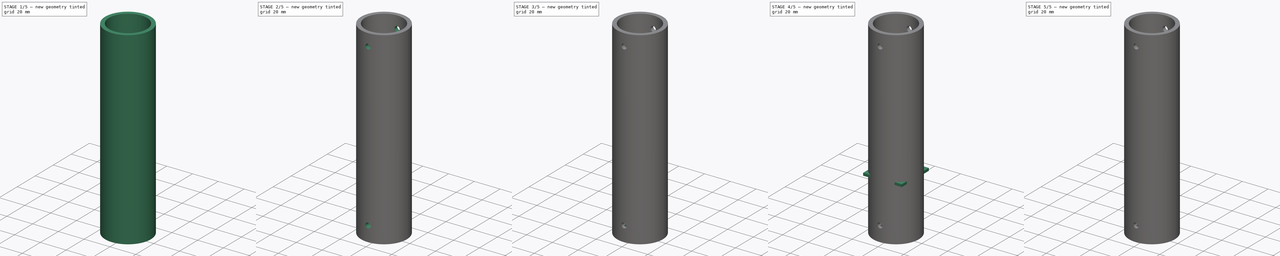
[diagram: build sequence overview — one tinted view per stage of 5, left to right]
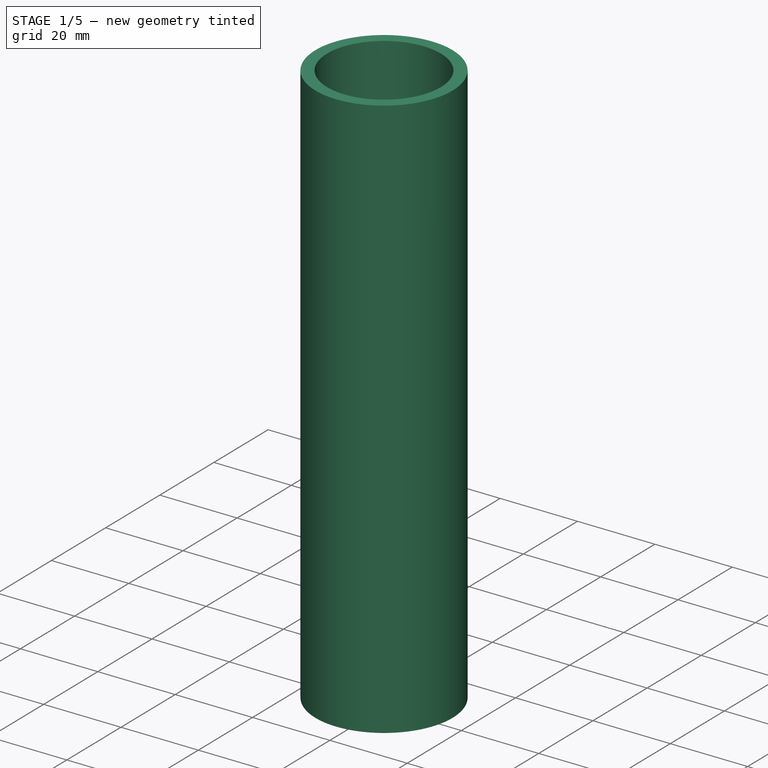
[diagram: stage 1 of 5 — iso view after this stage's code; geometry added in this stage tinted green]
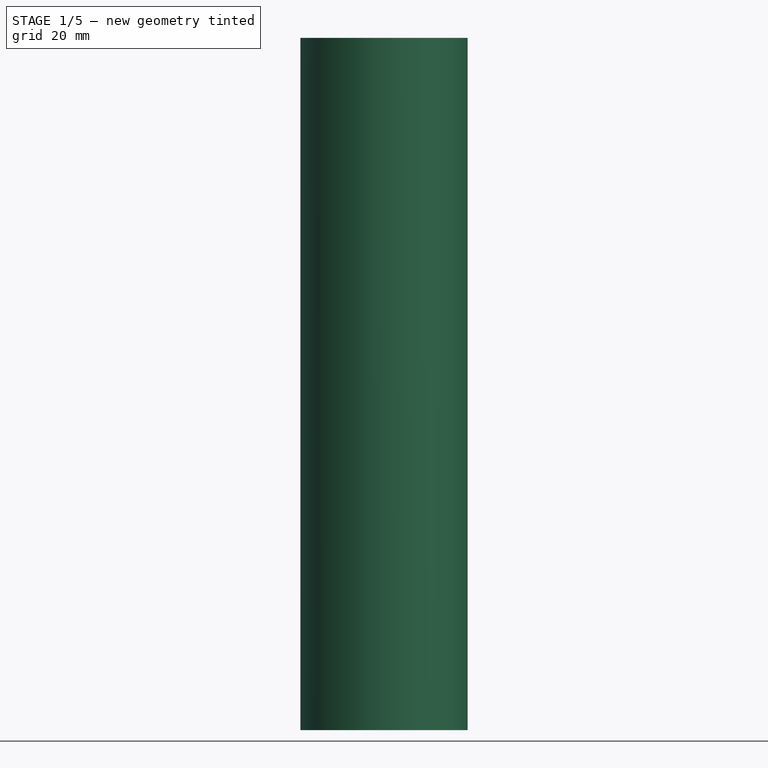
[diagram: stage 1 of 5 — front view after this stage's code; geometry added in this stage tinted green]
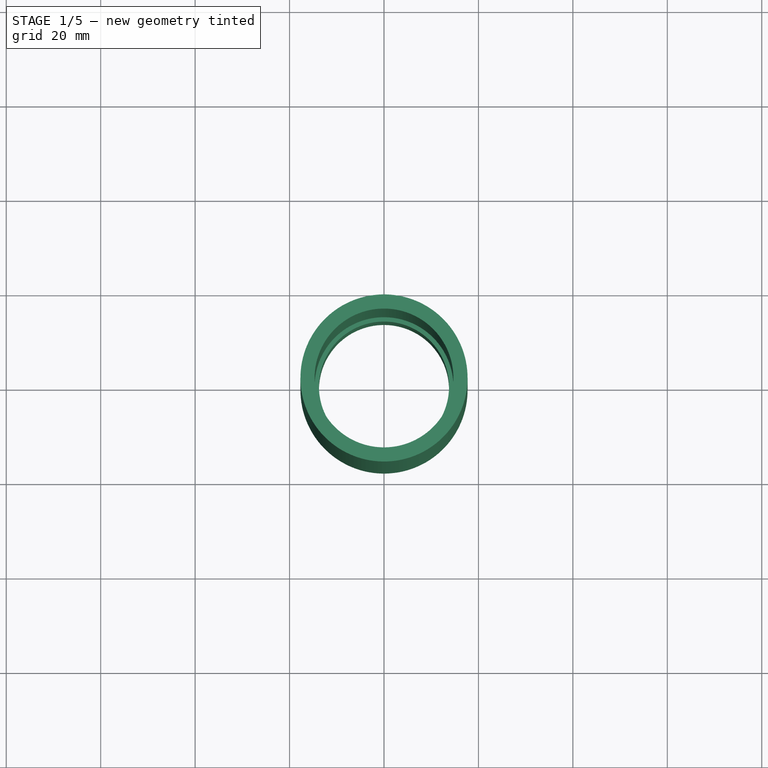
[diagram: stage 1 of 5 — top view after this stage's code; geometry added in this stage tinted green]
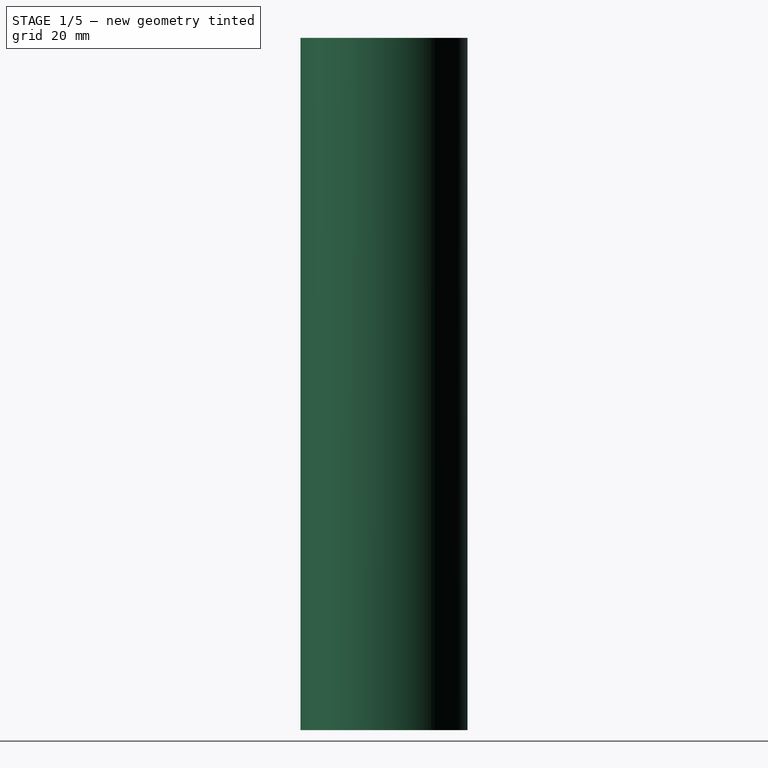
[diagram: stage 1 of 5 — right view after this stage's code; geometry added in this stage tinted green]
FCSTD DOCUMENT  (FreeCAD 0.21R33771 (Git))
Label: RDWhipItGood
License: All rights reserved
LicenseURL: http://en.wikipedia.org/wiki/All_rights_reserved
objects: Sketcher::SketchObject×14, PartDesign::Pocket×10, PartDesign::Pad×4, PartDesign::Body×2, App::Part×2, Spreadsheet::Sheet×1, PartDesign::Fillet×1
note: 46 computed .brp shape members not serialized (recipe doc carries the construction recipe); baked Part::Feature solids carry a one-line shape summary decoded from their .brp

FEATURE [PartDesign::Body] Body  label="RDWhipItGoodWhipBody"
  Group = -> [Sketch,Pad,Sketch001,Pocket,Sketch002,Pocket001,Fillet,Sketch003,Pad001,Sketch004,Pocket002,Sketch006,Pocket004,Sketch007,Pocket005]
  Origin = -> Origin001
  Tip = -> Pocket005
FEATURE [App::Part] Part  label="RDWhipItGoodWhipPart"
  Group = -> [Body]
  Origin = -> Origin
FEATURE [Sketcher::SketchObject] Sketch008
  FullyConstrained = true
  MapMode = 5
  Support = -> [XY_Plane003]
  expr: Constraints[0] = <<p>>.f_diameter + <<p>>.clearance * 2 + <<p>>.f_wall * 2
  sketch-geometry (1):
    g0: Circle CenterX=0 CenterY=0 CenterZ=0 NormalX=0 NormalY=0 NormalZ=1 AngleXU=0 Radius=17.7
  constraints (2):
    c: Diameter(g0) = 35.4
    c: Coincident(g0,g-1)
FEATURE [PartDesign::Pad] Pad002  label="MainPad001"
  Direction = (0,0,1)
  Length = 146.6
  Length2 = 10
  Profile = -> Sketch008
  ReferenceAxis = -> Sketch008 [N_Axis]
  Type = 0
  expr: Length = <<p>>.w_base + <<p>>.w_length_1 + <<p>>.w_length_2 + <<p>>.f_length
FEATURE [Sketcher::SketchObject] Sketch009
  FullyConstrained = true
  MapMode = 5
  Placement = pos=(0,0,146.6) rot=(0,0,1;0rad)
  Support = -> [Pad002]
  expr: Constraints[1] = <<p>>.w_diameter_3 + <<p>>.clearance * 2 + <<p>>.w_wall + <<p>>.clearance * 2
  sketch-geometry (1):
    g0: Circle CenterX=0 CenterY=0 CenterZ=0 NormalX=0 NormalY=0 NormalZ=1 AngleXU=0 Radius=13.775
  constraints (2):
    c: Coincident(g0,g-1)
    c: Diameter(g0) = 27.55
FEATURE [PartDesign::Pocket] Pocket006  label="SecondPocket001"
  BaseFeature = -> Pad002
  Direction = (0,0,-1)
  Length = 5
  Length2 = 5
  Profile = -> Sketch009
  ReferenceAxis = -> Sketch009 [N_Axis]
  Type = 1
FEATURE [Sketcher::SketchObject] Sketch010
  FullyConstrained = true
  MapMode = 5
  Placement = pos=(0,0,146.6) rot=(0,0,1;0rad)
  Support = -> [Pocket006]
  expr: Constraints[1] = <<p>>.f_diameter + <<p>>.clearance * 2
  sketch-geometry (1):
    g0: Circle CenterX=0 CenterY=0 CenterZ=0 NormalX=0 NormalY=0 NormalZ=1 AngleXU=0 Radius=14.7
  constraints (2):
    c: Coincident(g0,g-1)
    c: Diameter(g0) = 29.4
FEATURE [PartDesign::Pocket] Pocket007  label="FlashLightPocket"
  BaseFeature = -> Pocket006
  Direction = (0,0,-1)
  Length = 105
  Length2 = 5
  Profile = -> Sketch010
  ReferenceAxis = -> Sketch010 [N_Axis]
  Type = 0
  expr: Length = <<p>>.f_length
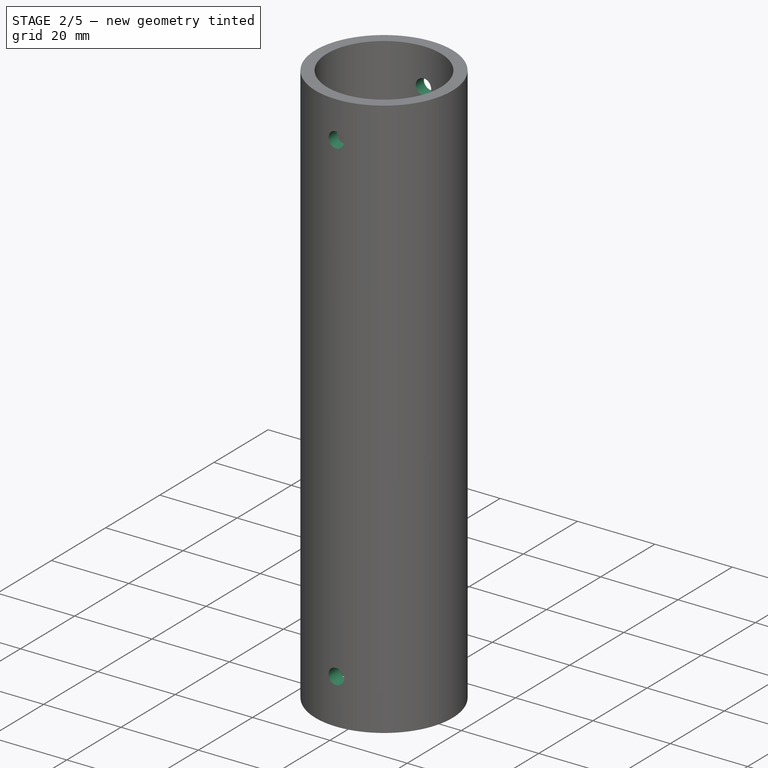
[diagram: stage 2 of 5 — iso view after this stage's code; geometry added in this stage tinted green]
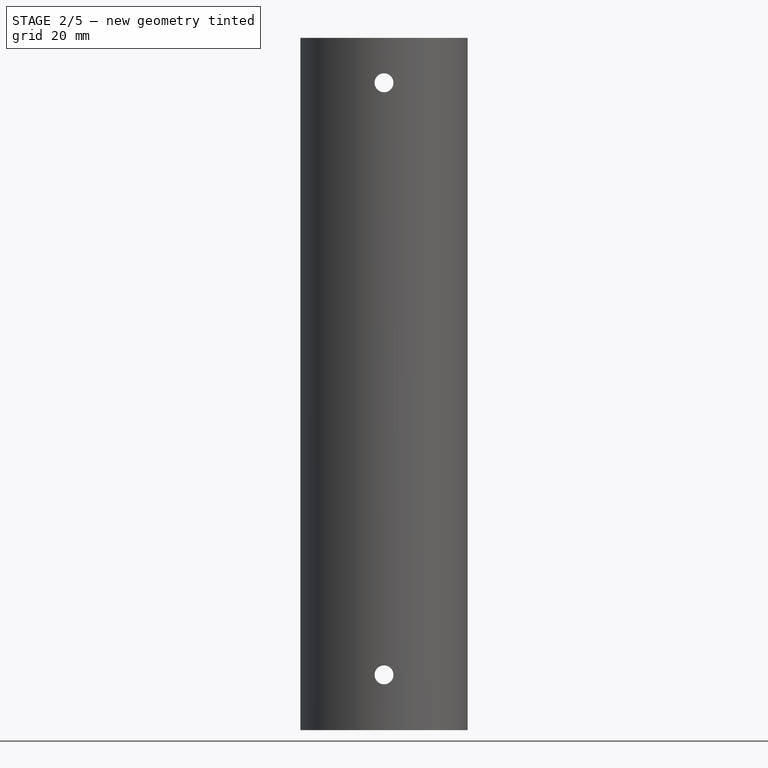
[diagram: stage 2 of 5 — front view after this stage's code; geometry added in this stage tinted green]
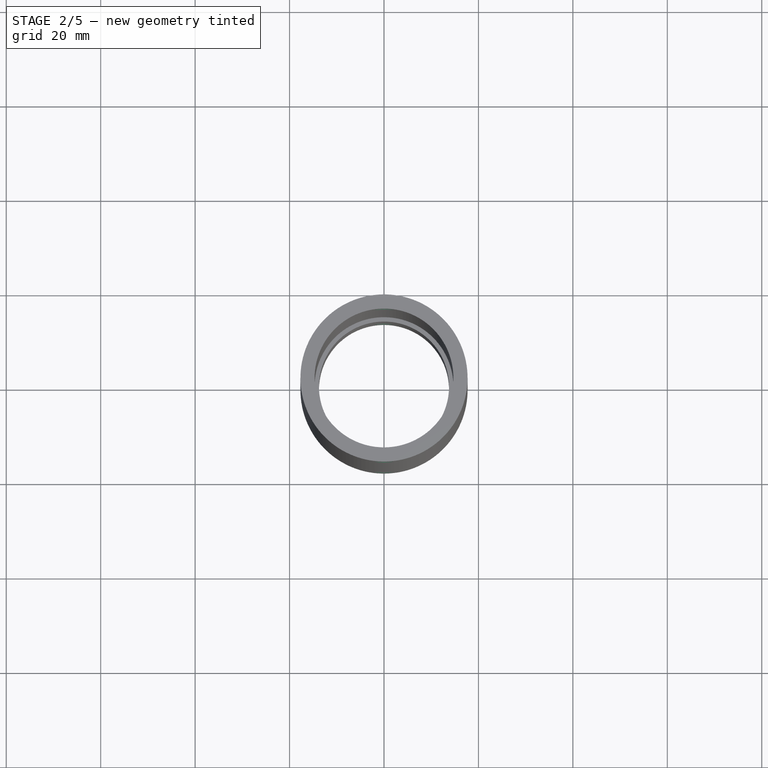
[diagram: stage 2 of 5 — top view after this stage's code; geometry added in this stage tinted green]
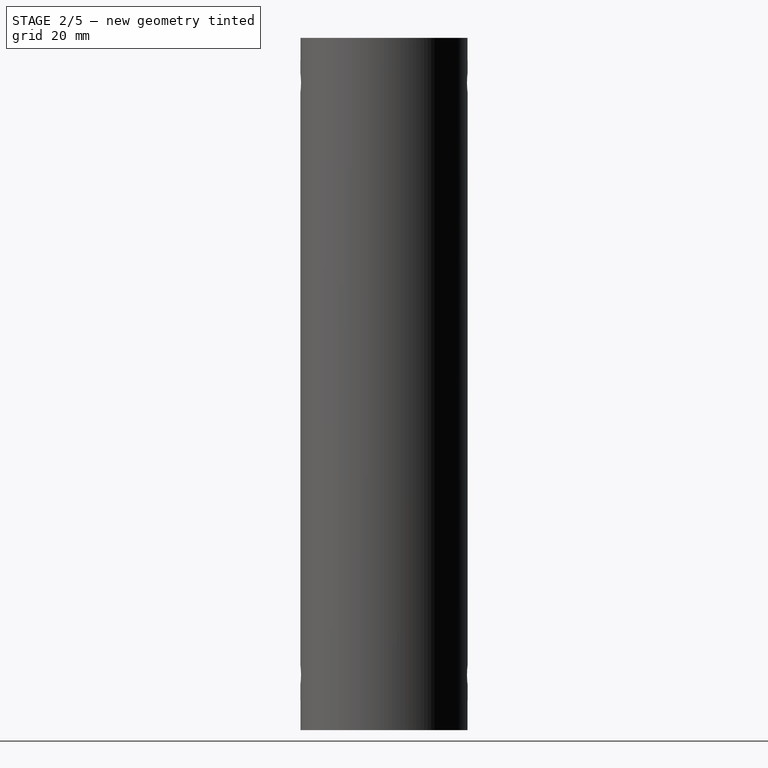
[diagram: stage 2 of 5 — right view after this stage's code; geometry added in this stage tinted green]
FEATURE [Sketcher::SketchObject] Sketch011
  FullyConstrained = true
  MapMode = 5
  Placement = pos=(0,0,146.6) rot=(0,0,1;0rad)
  Support = -> [Pocket007]
  sketch-geometry (4):
    g0: LineSegment StartX=-18 StartY=18 StartZ=0 EndX=18 EndY=18 EndZ=0
    g1: LineSegment StartX=18 StartY=18 StartZ=0 EndX=18 EndY=-18 EndZ=0
    g2: LineSegment StartX=18 StartY=-18 StartZ=0 EndX=-18 EndY=-18 EndZ=0
    g3: LineSegment StartX=-18 StartY=-18 StartZ=0 EndX=-18 EndY=18 EndZ=0
  constraints (11):
    c: Coincident(g0,g1)
    c: Coincident(g1,g2)
    c: Coincident(g2,g3)
    c: Coincident(g3,g0)
    c: Horizontal(g0)
    c: Horizontal(g2)
    c: Vertical(g1)
    c: Vertical(g3)
    c: DistanceY(g1,g1) = 36
    c: DistanceX(g0,g0) = 36
    c: Symmetric(g0,g2,g-1)
FEATURE [PartDesign::Pad] Pad003  label="FakePad001"
  BaseFeature = -> Pocket007
  Direction = (0,0,1)
  Length = 2
  Length2 = 10
  Profile = -> Sketch011
  ReferenceAxis = -> Sketch011 [N_Axis]
  Type = 0
FEATURE [Sketcher::SketchObject] Sketch012
  FullyConstrained = true
  MapMode = 5
  Placement = pos=(0,-18,0) rot=(1,0,0;1.5708rad)
  Support = -> [Pad003]
  expr: Constraints[1] = <<p>>.m3_diameter
  expr: Constraints[2] = <<p>>.w_base + <<p>>.w_length_1 + <<p>>.w_length_2 - (<<p>>.w_base + <<p>>.w_length_1 + <<p>>.w_length_2 - <<p>>.w_length_2 / 2)
  expr: Constraints[4] = <<p>>.m3_diameter
  expr: Constraints[5] = <<p>>.w_base + <<p>>.w_length_1 + <<p>>.w_length_2 + <<p>>.f_length - <<p>>.two_notch
  sketch-geometry (2):
    g0: Circle CenterX=0 CenterY=11.7 CenterZ=0 NormalX=0 NormalY=0 NormalZ=1 AngleXU=0 Radius=2
    g1: Circle CenterX=0 CenterY=137.1 CenterZ=0 NormalX=0 NormalY=0 NormalZ=1 AngleXU=0 Radius=2
  constraints (6):
    c: PointOnObject(g0,g-2)
    c: Diameter(g0) = 4
    c: DistanceY(g-1,g0) = 11.7
    c: PointOnObject(g1,g-2)
    c: Diameter(g1) = 4
    c: DistanceY(g-1,g1) = 137.1
FEATURE [PartDesign::Pocket] Pocket008  label="m3pocket"
  BaseFeature = -> Pad003
  Direction = (0,1,-2e-16)
  Length = 5
  Length2 = 5
  Profile = -> Sketch012
  ReferenceAxis = -> Sketch012 [N_Axis]
  Type = 1
FEATURE [Sketcher::SketchObject] Sketch013
  FullyConstrained = true
  MapMode = 5
  Placement = pos=(0,0,148.6) rot=(0,0,1;0rad)
  Support = -> [Pocket008]
  sketch-geometry (4):
    g0: LineSegment StartX=-18 StartY=18 StartZ=0 EndX=18 EndY=18 EndZ=0
    g1: LineSegment StartX=18 StartY=18 StartZ=0 EndX=18 EndY=-18 EndZ=0
    g2: LineSegment StartX=18 StartY=-18 StartZ=0 EndX=-18 EndY=-18 EndZ=0
    g3: LineSegment StartX=-18 StartY=-18 StartZ=0 EndX=-18 EndY=18 EndZ=0
  constraints (11):
    c: Coincident(g0,g1)
    c: Coincident(g1,g2)
    c: Coincident(g2,g3)
    c: Coincident(g3,g0)
    c: Horizontal(g0)
    c: Horizontal(g2)
    c: Vertical(g1)
    c: Vertical(g3)
    c: DistanceX(g0,g0) = 36
    c: DistanceY(g1,g1) = 36
    c: Symmetric(g0,g2,g-1)
FEATURE [PartDesign::Pocket] Pocket009  label="FakePadRemoval001"
  BaseFeature = -> Pocket008
  Direction = (0,0,-1)
  Length = 2
  Length2 = 5
  Profile = -> Sketch013
  ReferenceAxis = -> Sketch013 [N_Axis]
  Type = 0
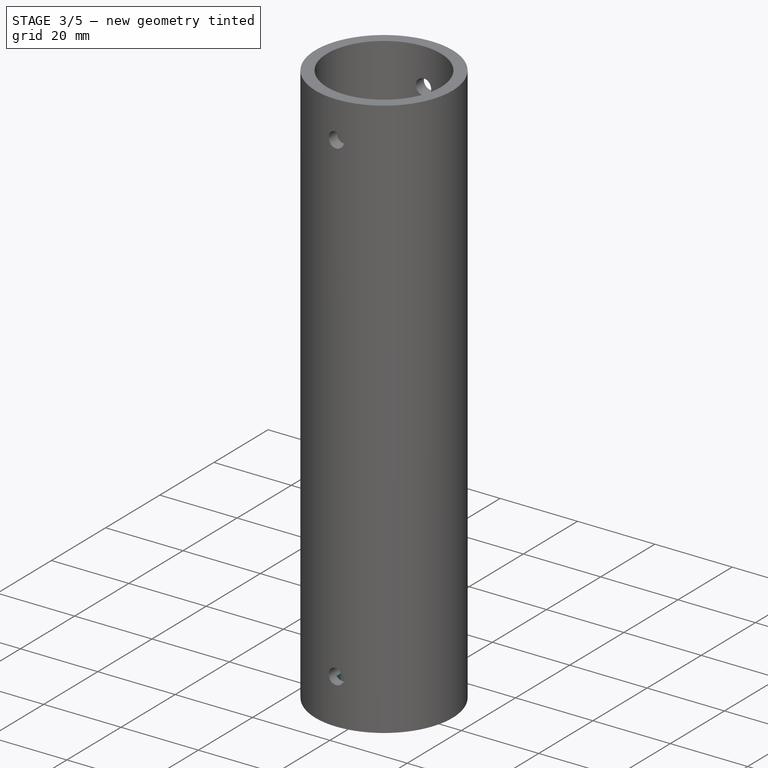
[diagram: stage 3 of 5 — iso view after this stage's code; geometry added in this stage tinted green]
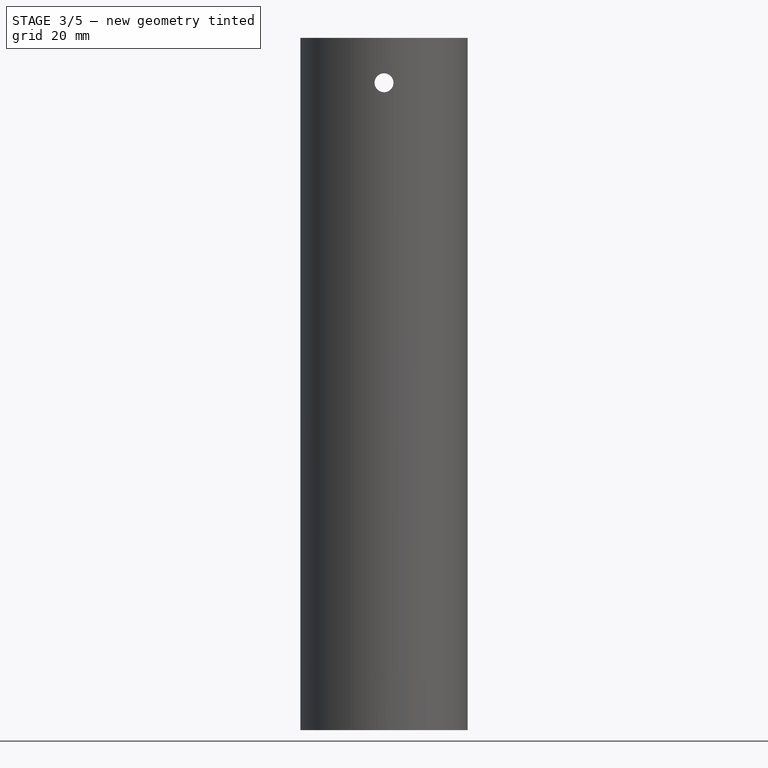
[diagram: stage 3 of 5 — front view after this stage's code; geometry added in this stage tinted green]
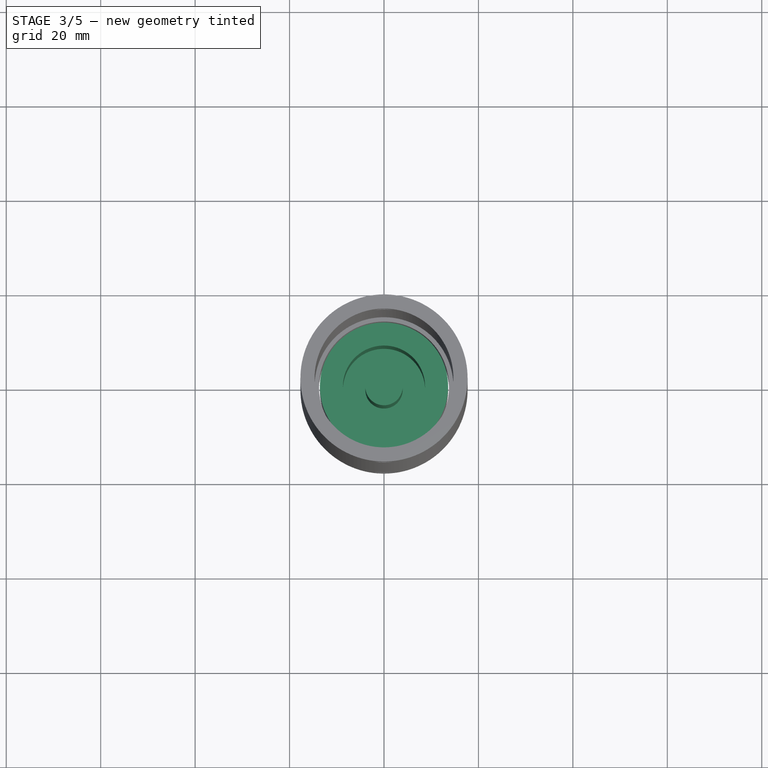
[diagram: stage 3 of 5 — top view after this stage's code; geometry added in this stage tinted green]
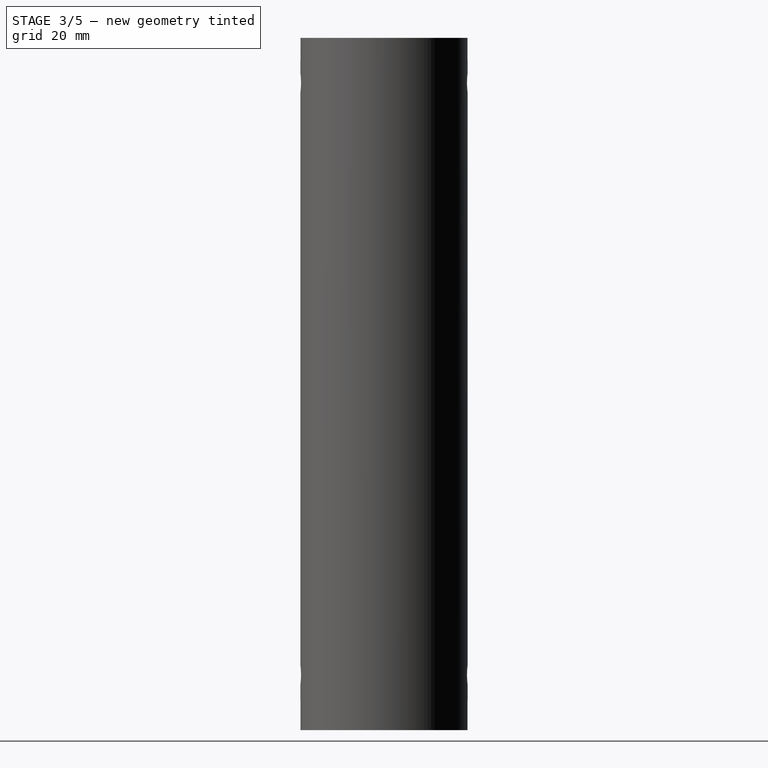
[diagram: stage 3 of 5 — right view after this stage's code; geometry added in this stage tinted green]
FEATURE [Sketcher::SketchObject] Sketch
  FullyConstrained = true
  MapMode = 5
  Support = -> [XY_Plane001]
  expr: Constraints[1] = <<p>>.w_diameter_3 + <<p>>.clearance * 2 + <<p>>.w_wall
  sketch-geometry (1):
    g0: Circle CenterX=0 CenterY=0 CenterZ=0 NormalX=0 NormalY=0 NormalZ=1 AngleXU=0 Radius=13.575
  constraints (2):
    c: Coincident(g0,g-1)
    c: Diameter(g0) = 27.15
FEATURE [Spreadsheet::Sheet] Spreadsheet  label="p"
  cells = A1='f_wall; B1(f_wall)=3; A2='f_base; B2(f_base)=5; A3='f_diameter; B3(f_diameter)=29; A4='f_length; B4(f_length)=105; A6='w_diameter_1; B6(w_diameter_1)=8.3; A7='w_diameter_2; B7(w_diameter_2)=17; A8='w_diameter_3; B8(w_diameter_3)=23.75; A9='w_length_1; B9(w_length_1)=16.7; A10='w_length_2; B10(w_length_2)=23.4; A11='w_wall; B11(w_wall)=3; A12='w_base; B12(w_base)=1.5; A14='m3_diameter; B14(m3_diameter)=4; A15='m3_length; B15(m3_length)=5; A17='clearance; B17(clearance)=0.2; A19='set_diameter; B19(set_diameter)=2.5; A21='w_d; B21=27.15; A22='two_notch; B22(two_notch)=9.5; A24='m3_width; B24(m3_width)=30.5; A25='set_width; B25(set_width)=32.5
FEATURE [PartDesign::Pad] Pad  label="MainPad"
  Direction = (0,0,1)
  Length = 41.6
  Length2 = 10
  Profile = -> Sketch
  ReferenceAxis = -> Sketch [N_Axis]
  Type = 0
  expr: Length = <<p>>.w_base + <<p>>.w_length_1 + <<p>>.w_length_2
FEATURE [Sketcher::SketchObject] Sketch001
  FullyConstrained = true
  MapMode = 5
  Placement = pos=(0,0,41.6) rot=(0,0,1;0rad)
  Support = -> [Pad]
  expr: Constraints[1] = <<p>>.w_diameter_2 + <<p>>.clearance * 2
  expr: Constraints[3] = <<p>>.w_diameter_1 - <<p>>.clearance * 2
  sketch-geometry (2):
    g0: Circle CenterX=0 CenterY=0 CenterZ=0 NormalX=0 NormalY=0 NormalZ=1 AngleXU=0 Radius=8.7
    g1: Circle CenterX=0 CenterY=0 CenterZ=0 NormalX=0 NormalY=0 NormalZ=1 AngleXU=0 Radius=3.95
  constraints (4):
    c: Coincident(g0,g-1)
    c: Diameter(g0) = 17.4
    c: Coincident(g1,g0)
    c: Diameter(g1) = 7.9
FEATURE [PartDesign::Pocket] Pocket  label="MainPocket"
  BaseFeature = -> Pad
  Direction = (0,0,-1)
  Length = 40.1
  Length2 = 5
  Profile = -> Sketch001
  ReferenceAxis = -> Sketch001 [N_Axis]
  Type = 0
  expr: Length = <<p>>.w_length_1 + <<p>>.w_length_2
FEATURE [Sketcher::SketchObject] Sketch014
  FullyConstrained = true
  MapMode = 5
  Placement = pos=(0,0,0) rot=(1,0,0;3.14159rad)
  Support = -> [Pocket009]
  expr: Constraints[20] = <<p>>.set_width
  expr: Constraints[8] = 3.2
  expr: Constraints[9] = <<p>>.m3_width
  sketch-geometry (8):
    g0: LineSegment StartX=-1.6 StartY=15.25 StartZ=0 EndX=1.6 EndY=15.25 EndZ=0
    g1: LineSegment StartX=1.6 StartY=15.25 StartZ=0 EndX=1.6 EndY=-15.25 EndZ=0
    g2: LineSegment StartX=1.6 StartY=-15.25 StartZ=0 EndX=-1.6 EndY=-15.25 EndZ=0
    g3: LineSegment StartX=-1.6 StartY=-15.25 StartZ=0 EndX=-1.6 EndY=15.25 EndZ=0
    g4: LineSegment StartX=-16.25 StartY=1.65 StartZ=0 EndX=16.25 EndY=1.65 EndZ=0
    g5: LineSegment StartX=16.25 StartY=1.65 StartZ=0 EndX=16.25 EndY=-1.65 EndZ=0
    g6: LineSegment StartX=16.25 StartY=-1.65 StartZ=0 EndX=-16.25 EndY=-1.65 EndZ=0
    g7: LineSegment StartX=-16.25 StartY=-1.65 StartZ=0 EndX=-16.25 EndY=1.65 EndZ=0
  constraints (22):
    c: Coincident(g0,g1)
    c: Coincident(g1,g2)
    c: Coincident(g2,g3)
    c: Coincident(g3,g0)
    c: Horizontal(g0)
    c: Horizontal(g2)
    c: Vertical(g1)
    c: Vertical(g3)
    c: DistanceX(g0,g0) = 3.2
    c: DistanceY(g1,g1) = 30.5
    c: Symmetric(g0,g2,g-1)
    c: Coincident(g4,g5)
    c: Coincident(g5,g6)
    c: Coincident(g6,g7)
    c: Coincident(g7,g4)
    c: Horizontal(g4)
    c: Horizontal(g6)
    c: Vertical(g5)
    c: Vertical(g7)
    c: DistanceY(g5,g5) = 3.3
    c: DistanceX(g4,g4) = 32.5
    c: Symmetric(g4,g6,g-1)
FEATURE [PartDesign::Pocket] Pocket010
  BaseFeature = -> Pocket009
  Direction = (0,0,1)
  Length = 12.5
  Length2 = 5
  Profile = -> Sketch014
  ReferenceAxis = -> Sketch014 [N_Axis]
  Type = 0
FEATURE [PartDesign::Body] Body001  label="RDWhipItGoodFlashLightBody"
  Group = -> [Sketch008,Pad002,Sketch009,Pocket006,Sketch010,Pocket007,Sketch011,Pad003,Sketch012,Pocket008,Sketch013,Pocket009,Sketch014,Pocket010]
  Origin = -> Origin003
  Tip = -> Pocket010
FEATURE [App::Part] Part001  label="RDWhipItGoodFlashLightPart"
  Group = -> [Body001]
  Origin = -> Origin002
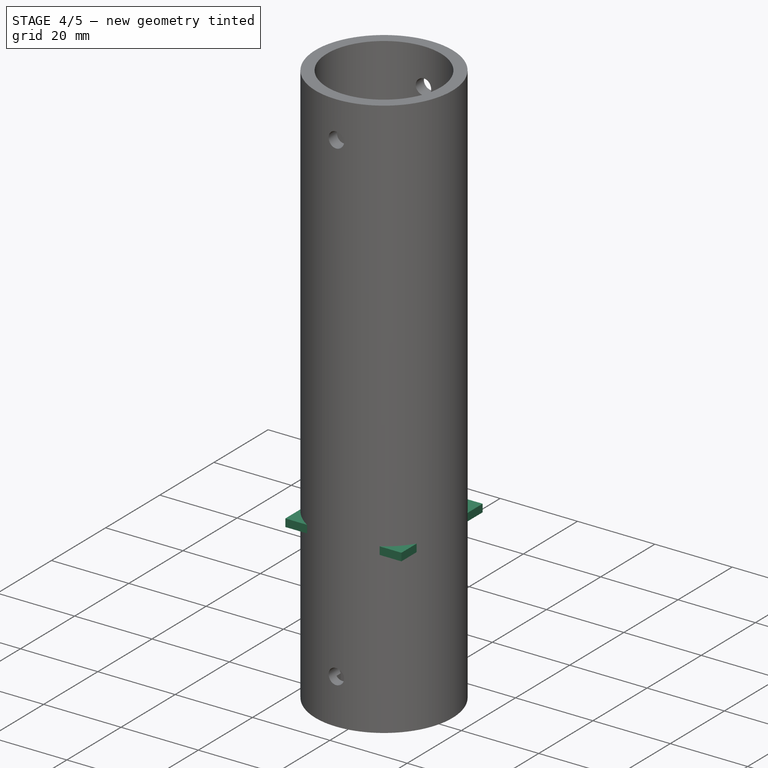
[diagram: stage 4 of 5 — iso view after this stage's code; geometry added in this stage tinted green]
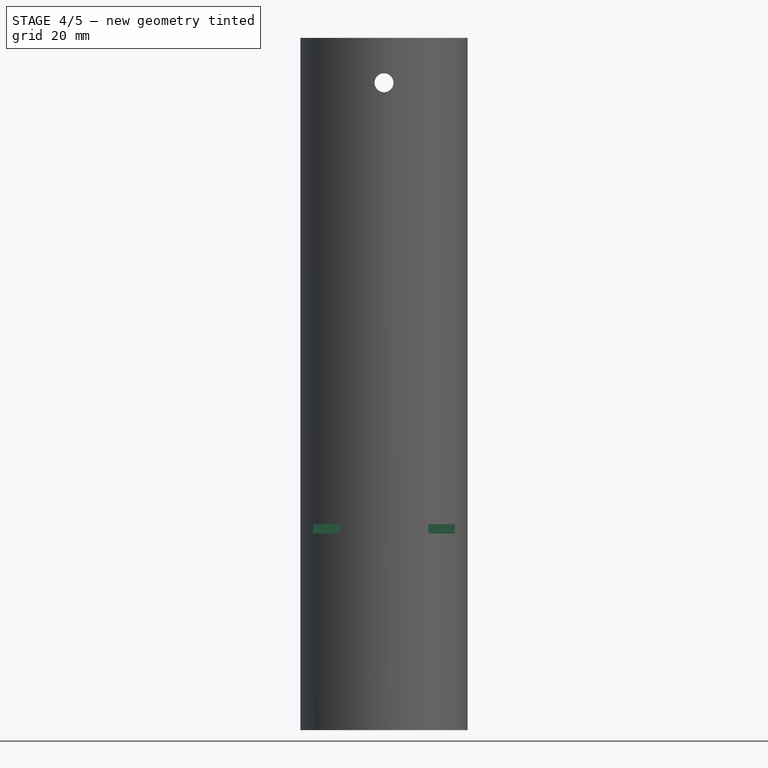
[diagram: stage 4 of 5 — front view after this stage's code; geometry added in this stage tinted green]
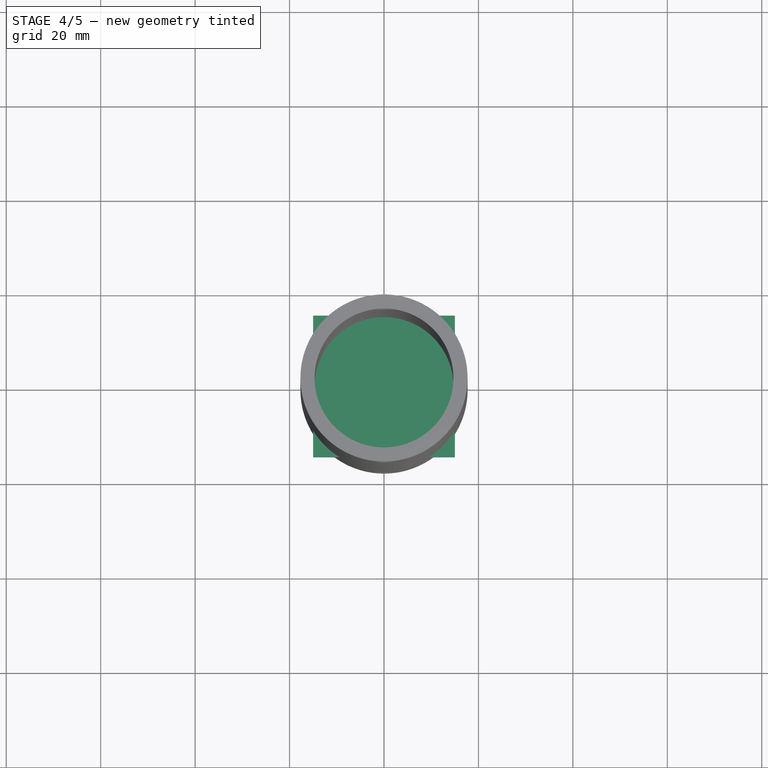
[diagram: stage 4 of 5 — top view after this stage's code; geometry added in this stage tinted green]
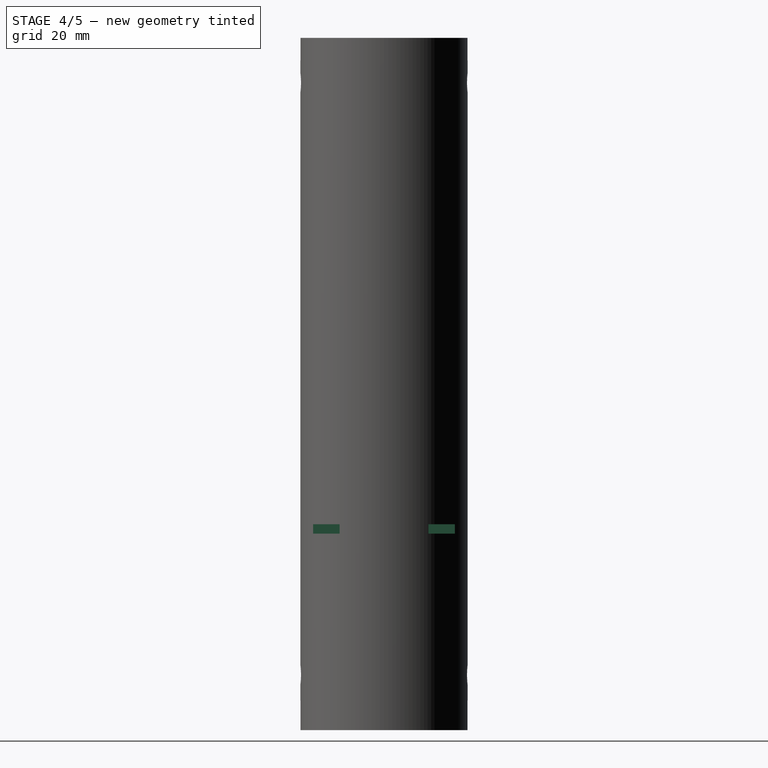
[diagram: stage 4 of 5 — right view after this stage's code; geometry added in this stage tinted green]
FEATURE [Sketcher::SketchObject] Sketch002
  FullyConstrained = true
  MapMode = 5
  Placement = pos=(0,0,41.6) rot=(0,0,1;0rad)
  Support = -> [Pocket]
  expr: Constraints[1] = <<p>>.w_diameter_3 + <<p>>.clearance * 2
  sketch-geometry (1):
    g0: Circle CenterX=0 CenterY=0 CenterZ=0 NormalX=0 NormalY=0 NormalZ=1 AngleXU=0 Radius=12.075
  constraints (2):
    c: Coincident(g0,g-1)
    c: Diameter(g0) = 24.15
FEATURE [PartDesign::Pocket] Pocket001  label="SecondPocket"
  BaseFeature = -> Pocket
  Direction = (0,0,-1)
  Length = 23.4
  Length2 = 5
  Profile = -> Sketch002
  ReferenceAxis = -> Sketch002 [N_Axis]
  Type = 0
  expr: Length = <<p>>.w_length_2
FEATURE [PartDesign::Fillet] Fillet  label="InnerFillet"
  Base = -> Pocket001 [Edge7,Edge11]
  BaseFeature = -> Pocket001
  Radius = 2.5
  SupportTransform = false
  UseAllEdges = false
FEATURE [Sketcher::SketchObject] Sketch003
  FullyConstrained = true
  MapMode = 5
  Placement = pos=(0,0,41.6) rot=(0,0,1;0rad)
  Support = -> [Fillet]
  sketch-geometry (4):
    g0: LineSegment StartX=-15 StartY=15 StartZ=0 EndX=15 EndY=15 EndZ=0
    g1: LineSegment StartX=15 StartY=15 StartZ=0 EndX=15 EndY=-15 EndZ=0
    g2: LineSegment StartX=15 StartY=-15 StartZ=0 EndX=-15 EndY=-15 EndZ=0
    g3: LineSegment StartX=-15 StartY=-15 StartZ=0 EndX=-15 EndY=15 EndZ=0
  constraints (11):
    c: Coincident(g0,g1)
    c: Coincident(g1,g2)
    c: Coincident(g2,g3)
    c: Coincident(g3,g0)
    c: Horizontal(g0)
    c: Horizontal(g2)
    c: Vertical(g1)
    c: Vertical(g3)
    c: DistanceX(g2,g2) = 30
    c: DistanceY(g1,g1) = 30
    c: Symmetric(g0,g2,g-1)
FEATURE [PartDesign::Pad] Pad001  label="FakePad"
  BaseFeature = -> Fillet
  Direction = (0,0,1)
  Length = 2
  Length2 = 10
  Profile = -> Sketch003
  ReferenceAxis = -> Sketch003 [N_Axis]
  Type = 0
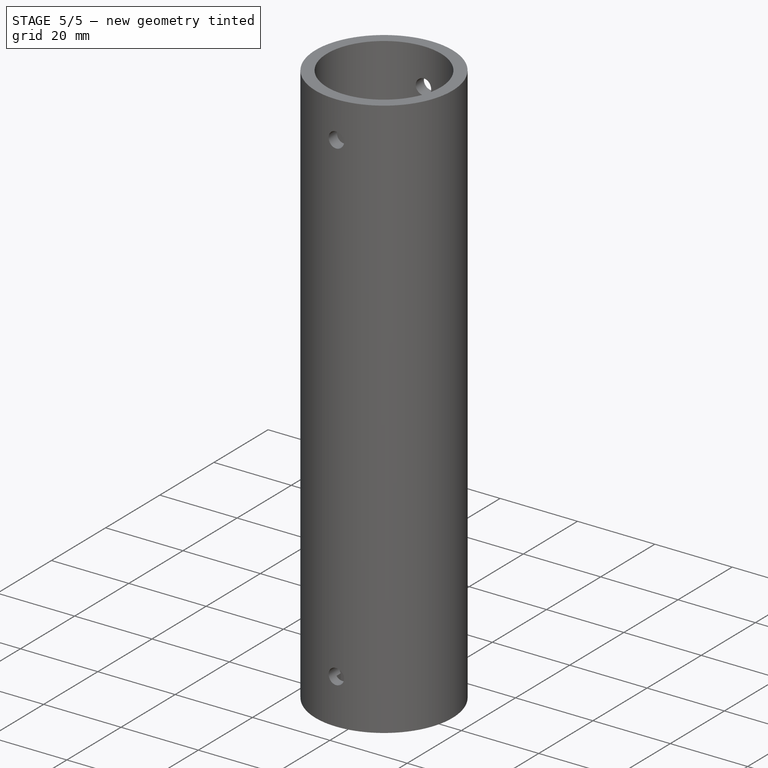
[diagram: stage 5 of 5 — iso view after this stage's code; geometry added in this stage tinted green]
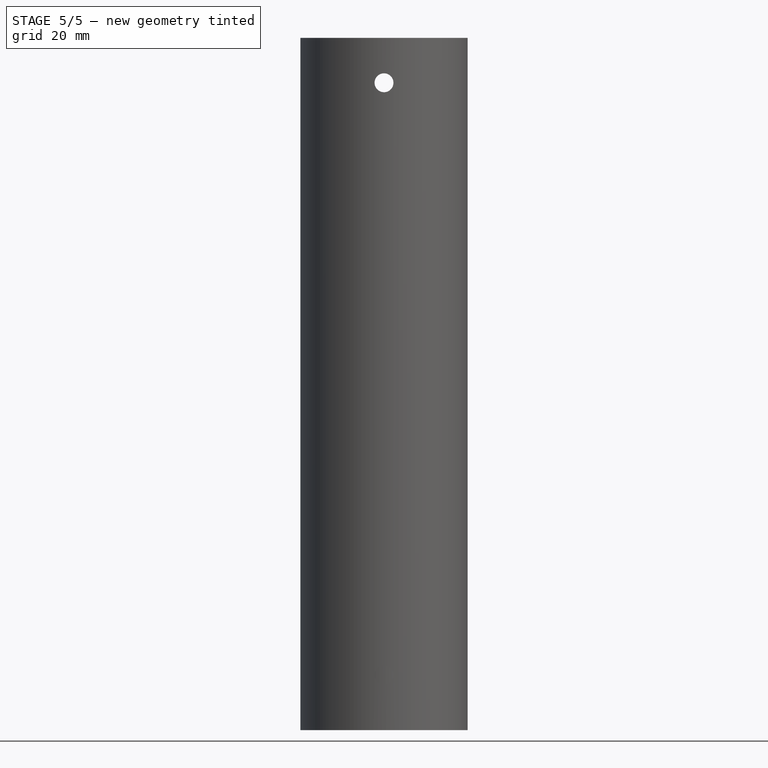
[diagram: stage 5 of 5 — front view after this stage's code; geometry added in this stage tinted green]
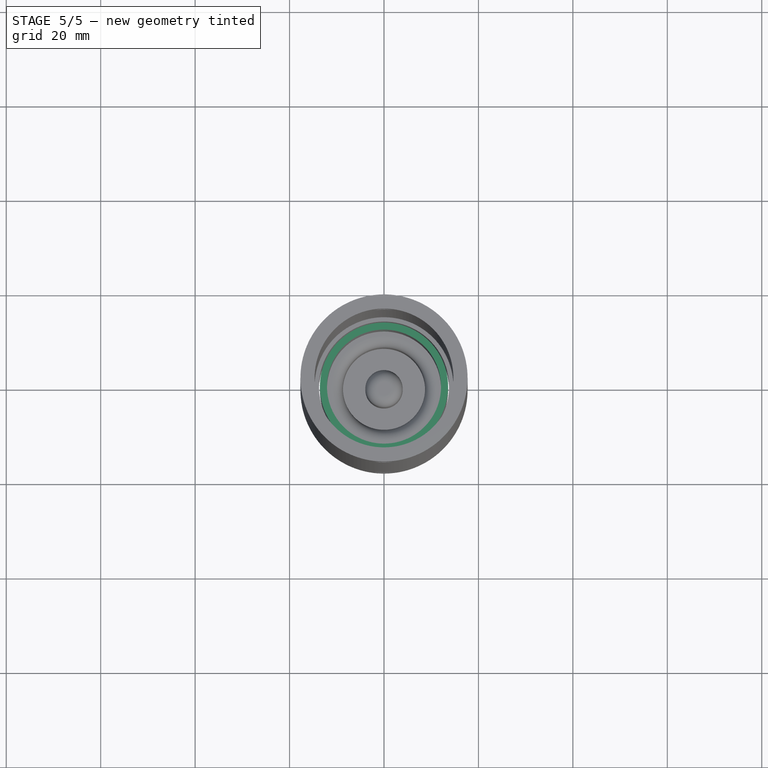
[diagram: stage 5 of 5 — top view after this stage's code; geometry added in this stage tinted green]
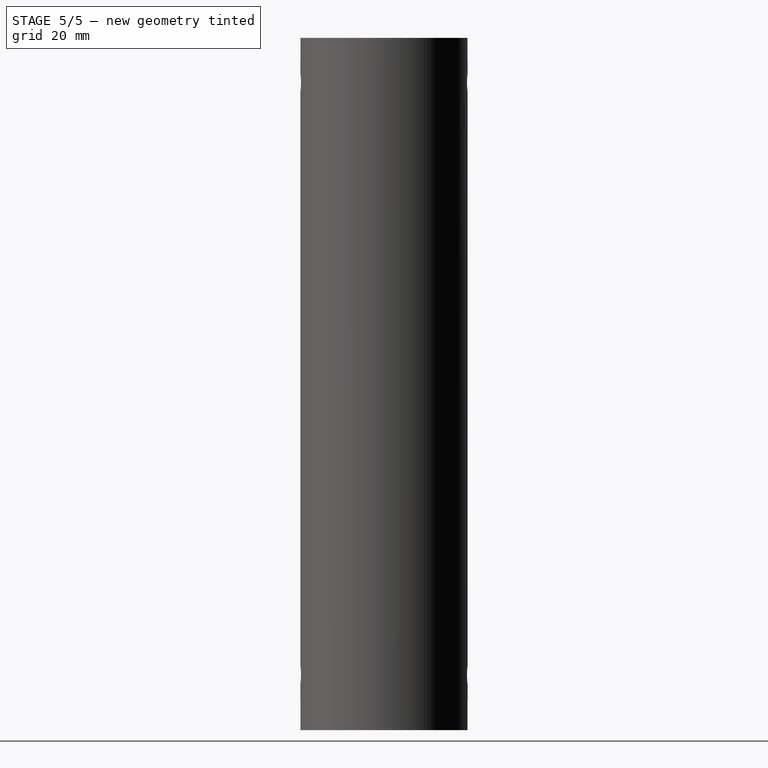
[diagram: stage 5 of 5 — right view after this stage's code; geometry added in this stage tinted green]
FEATURE [Sketcher::SketchObject] Sketch004
  FullyConstrained = true
  MapMode = 5
  Placement = pos=(0,-15,0) rot=(1,0,0;1.5708rad)
  Support = -> [Pad001]
  expr: Constraints[1] = <<p>>.set_diameter
  expr: Constraints[2] = <<p>>.w_base + <<p>>.w_length_1 + <<p>>.w_length_2 - <<p>>.w_length_2 / 2
  sketch-geometry (1):
    g0: Circle CenterX=0 CenterY=29.9 CenterZ=0 NormalX=0 NormalY=0 NormalZ=1 AngleXU=0 Radius=1.25
  constraints (3):
    c: PointOnObject(g0,g-2)
    c: Diameter(g0) = 2.5
    c: DistanceY(g-1,g0) = 29.9
FEATURE [PartDesign::Pocket] Pocket002  label="SetPocket"
  BaseFeature = -> Pad001
  Direction = (0,1,-2e-16)
  Length = 3
  Length2 = 5
  Profile = -> Sketch004
  ReferenceAxis = -> Sketch004 [N_Axis]
  Type = 1
  expr: Length = <<p>>.w_wall
FEATURE [Sketcher::SketchObject] Sketch006
  FullyConstrained = true
  MapMode = 5
  Placement = pos=(15,0,0) rot=(0.57735,0.57735,0.57735;2.0944rad)
  expr: Constraints[1] = <<p>>.w_base + <<p>>.w_length_1 + <<p>>.w_length_2 - <<p>>.w_length_2 / 2
  expr: Constraints[2] = <<p>>.m3_diameter
  sketch-geometry (1):
    g0: Circle CenterX=0 CenterY=29.9 CenterZ=0 NormalX=0 NormalY=0 NormalZ=1 AngleXU=0 Radius=2
  constraints (3):
    c: PointOnObject(g0,g-2)
    c: DistanceY(g-1,g0) = 29.9
    c: Diameter(g0) = 4
FEATURE [PartDesign::Pocket] Pocket004  label="m3Pocket"
  BaseFeature = -> Pocket002
  Direction = (-1,0,0)
  Length = 3
  Length2 = 5
  Profile = -> Sketch006
  ReferenceAxis = -> Sketch006 [N_Axis]
  Type = 1
  expr: Length = <<p>>.w_wall
FEATURE [Sketcher::SketchObject] Sketch007
  FullyConstrained = true
  MapMode = 5
  Placement = pos=(0,0,43.6) rot=(0,0,1;0rad)
  Support = -> [Pocket004]
  sketch-geometry (4):
    g0: LineSegment StartX=-15 StartY=15 StartZ=0 EndX=15 EndY=15 EndZ=0
    g1: LineSegment StartX=15 StartY=15 StartZ=0 EndX=15 EndY=-15 EndZ=0
    g2: LineSegment StartX=15 StartY=-15 StartZ=0 EndX=-15 EndY=-15 EndZ=0
    g3: LineSegment StartX=-15 StartY=-15 StartZ=0 EndX=-15 EndY=15 EndZ=0
  constraints (11):
    c: Coincident(g0,g1)
    c: Coincident(g1,g2)
    c: Coincident(g2,g3)
    c: Coincident(g3,g0)
    c: Horizontal(g0)
    c: Horizontal(g2)
    c: Vertical(g1)
    c: Vertical(g3)
    c: DistanceY(g1,g1) = 30
    c: DistanceX(g0,g0) = 30
    c: Symmetric(g0,g2,g-1)
FEATURE [PartDesign::Pocket] Pocket005  label="FakePadRemoval"
  BaseFeature = -> Pocket004
  Direction = (0,0,-1)
  Length = 2
  Length2 = 5
  Profile = -> Sketch007
  ReferenceAxis = -> Sketch007 [N_Axis]
  Type = 0
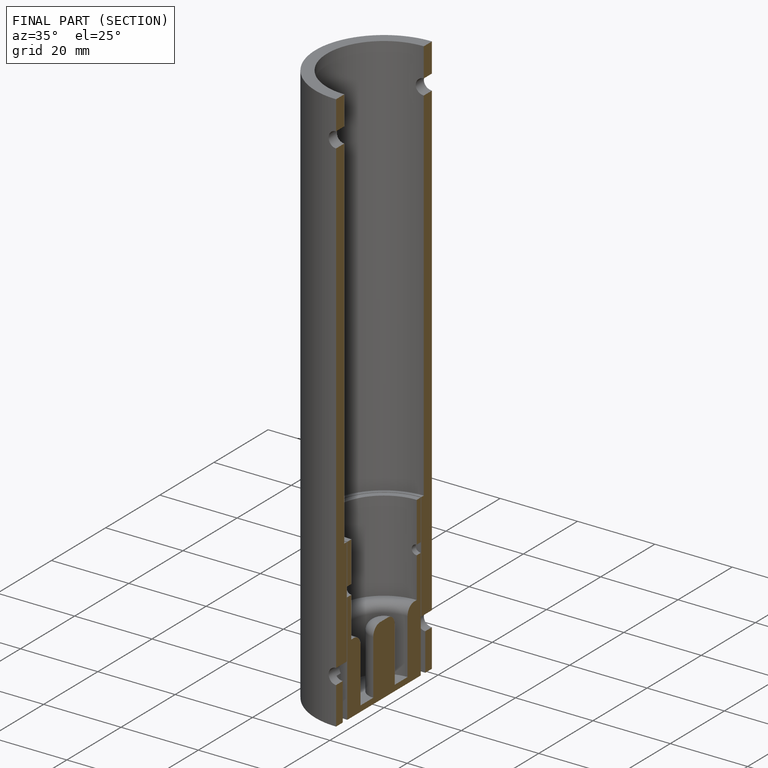
[diagram: finished part — half-section view (interior)]
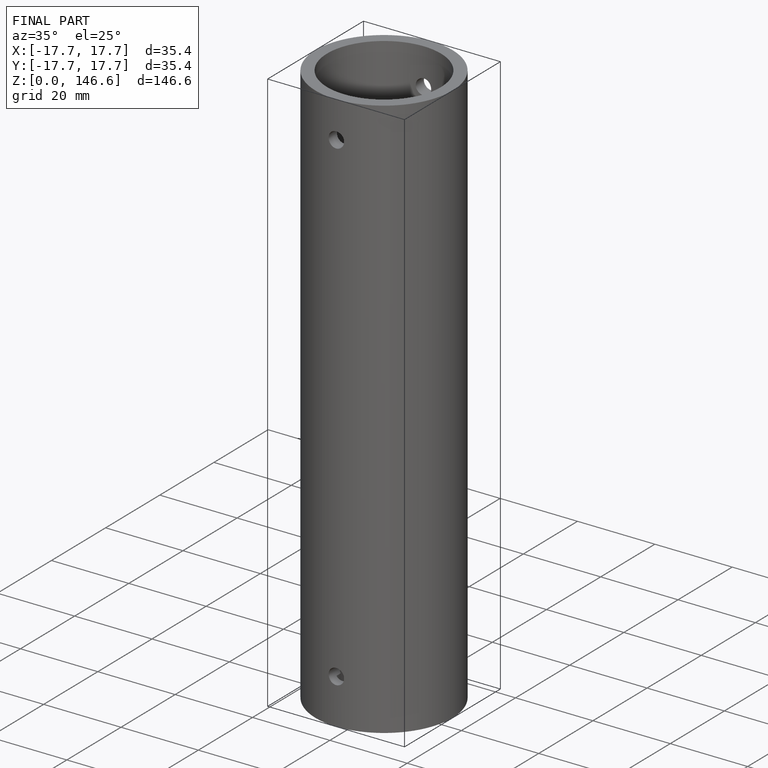
[diagram: finished part — iso view with bounding-box wireframe]
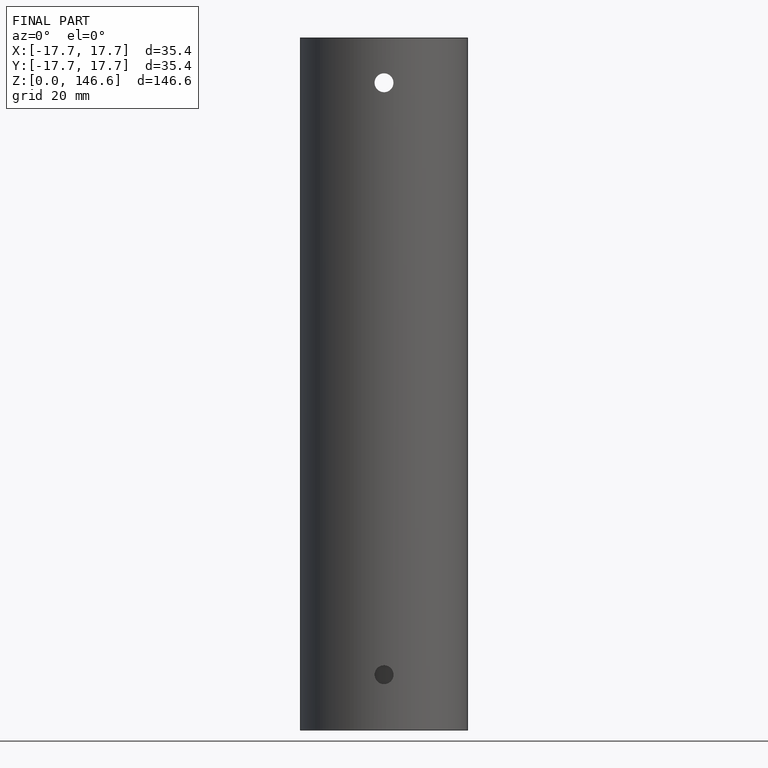
[diagram: finished part — front view with bounding-box wireframe]
